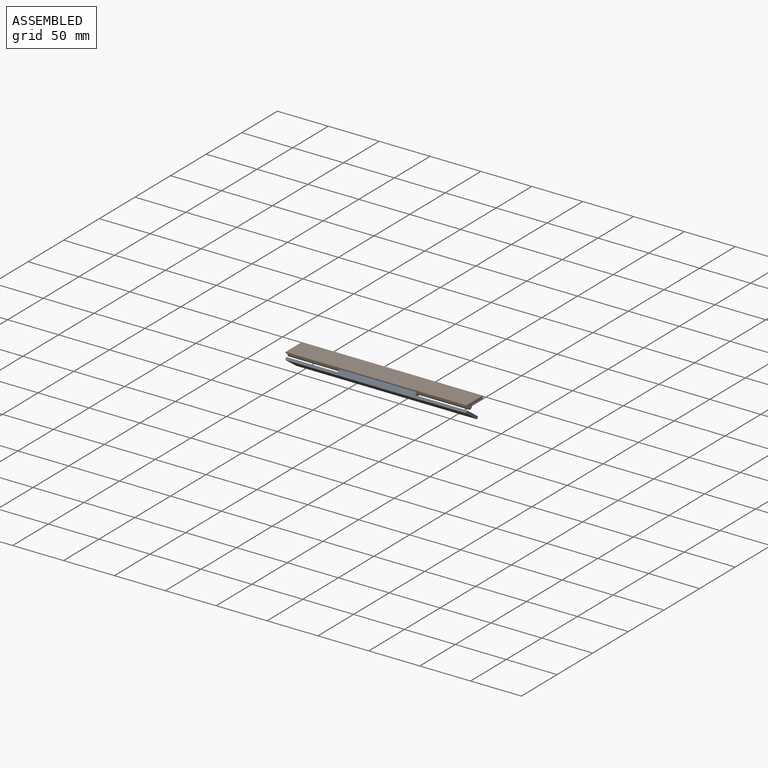
[diagram: assembled view]
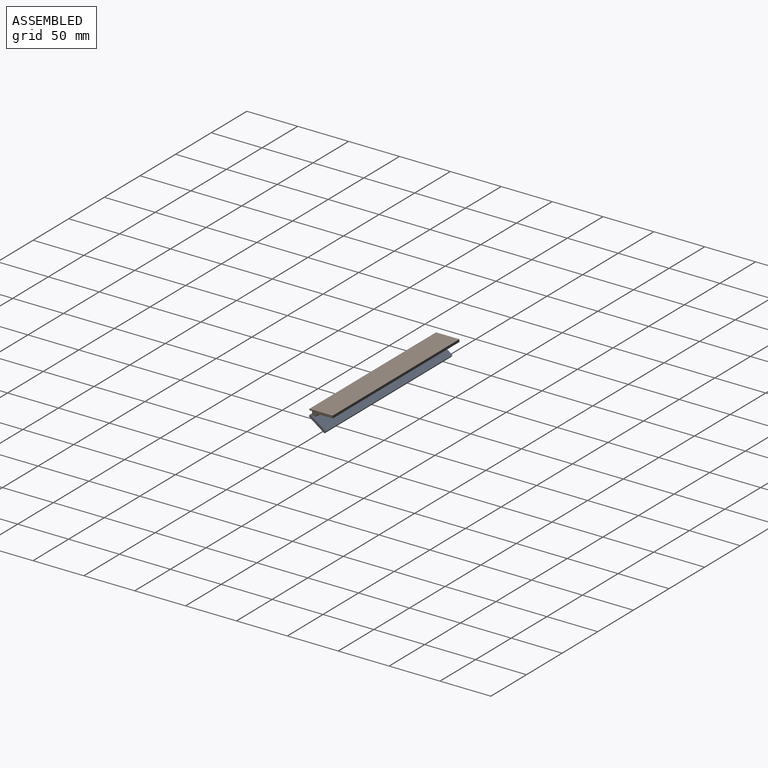
[diagram: assembled view, second angle]
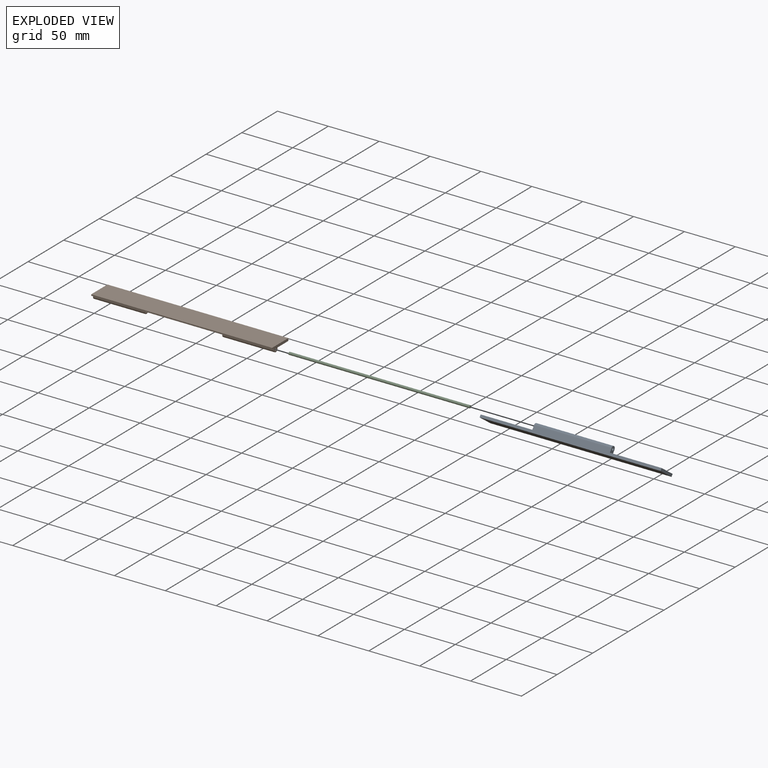
[diagram: exploded view]
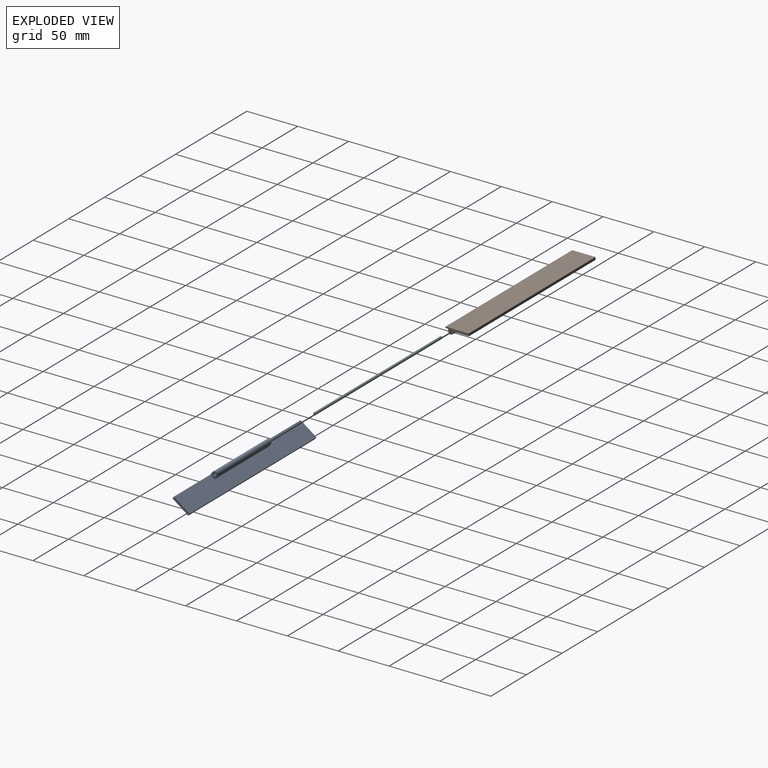
[diagram: exploded view, second angle]
ASSEMBLY  parts=3 mates=2
PART A: 11 faces, bbox 177.8x8.9x19.1 mm
  f0: plane 177.8x19.05mm, normal (0,-1,0), area 3000mm2, adj f1,f3,f4,f5,f6,f7,f8
  f1: plane 177.8x2.54mm, normal (0,0,-1), area 451.6mm2, adj f0,f2,f4,f5
  f2: plane 177.8x19.05mm, normal (0,1,0), area 3387.1mm2, adj f1,f3,f4,f5
  f3: plane 177.8x6.35mm, normal (0,0,1), area 741.9mm2, adj f0,f2,f4,f5,f6,f8,f9
  f4: plane 19.05x2.54mm, normal (1,0,0), area 48.4mm2, adj f0,f1,f2,f3
  f5: plane 19.05x2.54mm, normal (-1,0,0), area 48.4mm2, adj f0,f1,f2,f3
  f6: plane 6.35x5.08mm, normal (-1,0,0), area 24.4mm2, adj f0,f3,f7,f9,f10
  f7: plane 76.2x3.81mm, normal (0,0,-1), area 290.3mm2, adj f0,f6,f8,f9
  f8: plane 6.35x5.08mm, normal (1,0,0), area 24.4mm2, adj f0,f3,f7,f9,f10
  f9: cylinder r=2.54mm len=76.2mm, axis (-1,0,0), area 608mm2, adj f3,f6,f7,f8
  f10: cylinder r=1.27mm len=76.2mm, axis (1,0,0), area 608mm2, adj f6,f8
PART B: 16 faces, bbox 177.8x22.9x5.7 mm
  f0: plane 177.8x1.91mm, normal (0,-1,0), area 290.3mm2, adj f1,f2,f5,f7,f9,f10,f11,f14
  f1: plane 22.86x5.72mm, normal (1,0,0), area 63.1mm2, adj f0,f3,f4,f8,f10,f12,f13,f14
  f2: plane 22.86x5.72mm, normal (-1,0,0), area 63.1mm2, adj f0,f3,f4,f6,f11,f12,f13,f14
  f3: plane 177.8x16.68mm, normal (0,0,-1), area 2819.4mm2, adj f1,f2,f6,f7,f8,f9,f12,f13
  f4: plane 177.8x22.86mm, normal (0,0,1), area 4064.5mm2, adj f1,f2,f13,f15
  f5: plane 76.2x1.44mm, normal (0,0,-1), area 109.7mm2, adj f0,f7,f9,f12
  f6: plane 50.8x0.64mm, normal (0,1,0), area 32.3mm2, adj f2,f3,f7,f11
  f7: plane 5.08x3.18mm, normal (1,0,0), area 9.3mm2, adj f0,f3,f5,f6,f11,f12
  f8: plane 50.8x0.64mm, normal (0,1,0), area 32.3mm2, adj f1,f3,f9,f10
  f9: plane 5.08x3.18mm, normal (-1,0,0), area 9.3mm2, adj f0,f3,f5,f8,f10,f12
  f10: cylinder r=2.54mm len=50.8mm, axis (-1,0,0), area 405.4mm2, adj f0,f1,f8,f9
  f11: cylinder r=2.54mm len=50.8mm, axis (1,0,0), area 405.4mm2, adj f0,f2,f6,f7
  f12: cylinder r=1.27mm len=177.8mm, axis (-1,0,0), area 1013.4mm2, adj f1,f2,f3,f5,f7,f9
  f13: plane 177.8x2.54mm, normal (0,1,0), area 451.6mm2, adj f1,f2,f3,f4
  f14: plane 177.8x2.54mm, normal (0,0,-1), area 451.6mm2, adj f0,f1,f2,f15
  f15: plane 177.8x1.27mm, normal (0,-1,0), area 225.8mm2, adj f1,f2,f4,f14
PART C: 3 faces, bbox 177.8x2.5x2.5 mm
  f0: cylinder r=1.27mm len=177.8mm, axis (-1,0,0), area 1418.8mm2, adj f1,f2
  f1: plane 2.54x2.54mm, normal (1,0,0), area 5.1mm2, adj f0
  f2: plane 2.54x2.54mm, normal (-1,0,0), area 5.1mm2, adj f0
PLACE A rot(axis=(0,-0.46,0.89),180deg) t=(171.72,8.07,-12.72)mm
PLACE B t=(-6.08,-5.64,3.19)mm fixed
PLACE C rot(axis=(-1,0,0),36.5deg) t=(-6.08,-3.1,0.02)mm
MATE revolute C.f0 <-> B.f10  axis (1,0,0) through (171.72,-3.1,0.02)mm
MATE revolute A.f9 <-> C.f0  axis (-1,0,0) through (44.72,-3.1,0.02)mm
